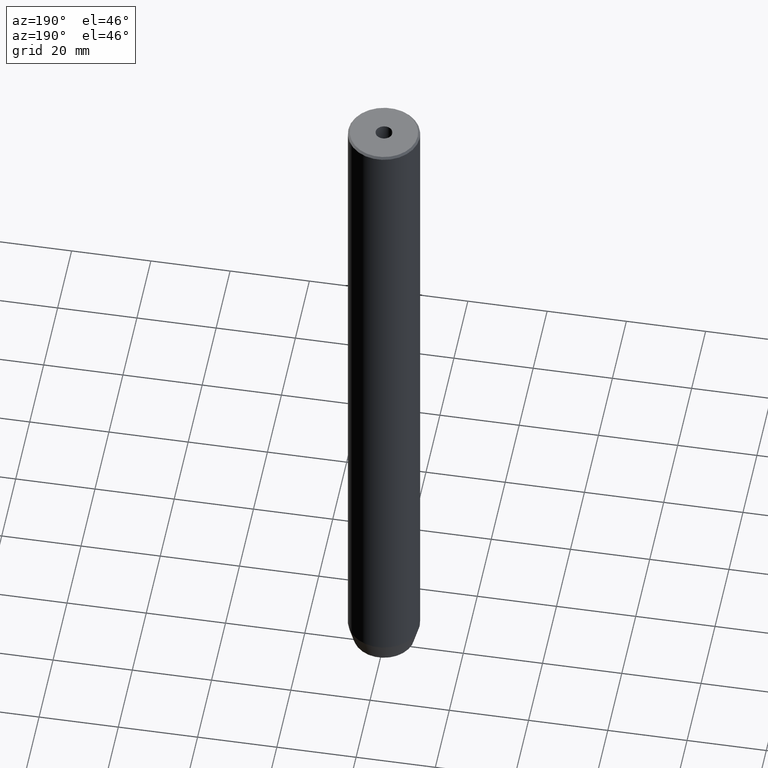
[diagram: clean part render]
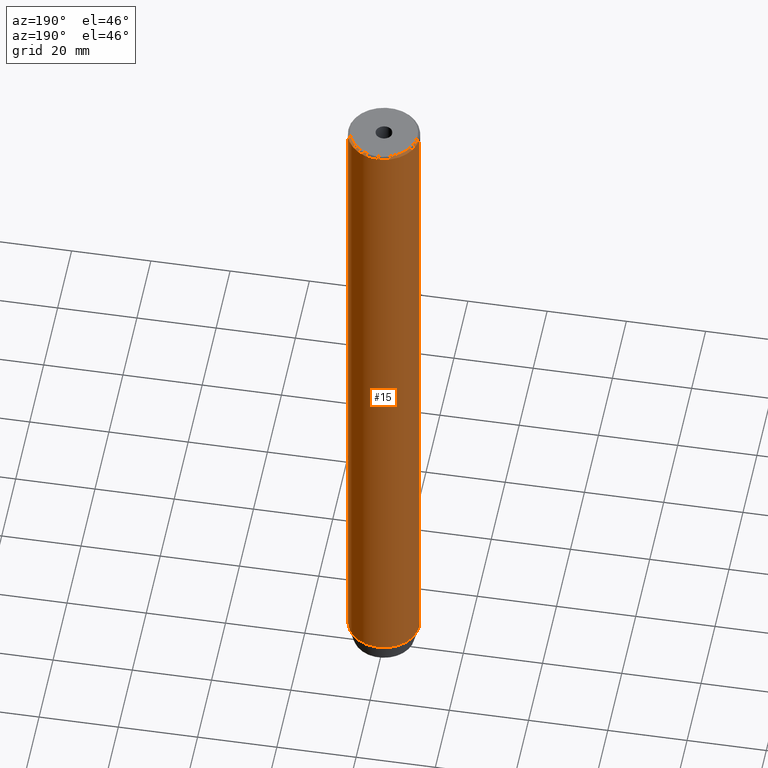
[diagram: same view with one face highlighted and labeled with its STEP entity id]
A machine part, auxiliary view. The second image highlights one B-rep face of the part: STEP entity #15.
In plain terms, the highlighted cylindrical surface (edge-blend (fillet) strip) has radius 9 mm, axis along (-0, -0, 1).
Its self-contained STEP definition (entity closure, byte-faithful):
#7 = VECTOR ( 'NONE', #493, 1000.000000000000000 ) ;
#15 = ADVANCED_FACE ( 'NONE', ( #485 ), #173, .T. ) ;
#39 = CARTESIAN_POINT ( 'NONE',  ( 0.000000000000000000, 0.000000000000000000, 0.000000000000000000 ) ) ;
#61 = CARTESIAN_POINT ( 'NONE',  ( 9.000000000000000000, 0.000000000000000000, 0.000000000000000000 ) ) ;
#102 = ORIENTED_EDGE ( 'NONE', *, *, #556, .T. ) ;
#109 = ORIENTED_EDGE ( 'NONE', *, *, #198, .T. ) ;
#122 = CARTESIAN_POINT ( 'NONE',  ( 0.000000000000000000, 0.000000000000000000, -0.5000000000000229816 ) ) ;
#128 = DIRECTION ( 'NONE',  ( -0.000000000000000000, -0.000000000000000000, 1.000000000000000000 ) ) ;
#135 = CARTESIAN_POINT ( 'NONE',  ( 9.000000000000000000, 0.000000000000000000, -175.0000000000000000 ) ) ;
#138 = ORIENTED_EDGE ( 'NONE', *, *, #426, .T. ) ;
#160 = CARTESIAN_POINT ( 'NONE',  ( 9.000000000000000000, 0.000000000000000000, -0.5000000000000229816 ) ) ;
#172 = CIRCLE ( 'NONE', #279, 9.000000000000000000 ) ;
#173 = CYLINDRICAL_SURFACE ( 'NONE', #267, 9.000000000000000000 ) ;
#198 = EDGE_CURVE ( 'NONE', #474, #282, #346, .T. ) ;
#239 = CARTESIAN_POINT ( 'NONE',  ( 0.000000000000000000, 0.000000000000000000, -175.0000000000000000 ) ) ;
#267 = AXIS2_PLACEMENT_3D ( 'NONE', #39, #128, #322 ) ;
#279 = AXIS2_PLACEMENT_3D ( 'NONE', #239, #542, #281 ) ;
#281 = DIRECTION ( 'NONE',  ( 1.000000000000000000, 0.000000000000000000, 0.000000000000000000 ) ) ;
#282 = VERTEX_POINT ( 'NONE', #160 ) ;
#284 = DIRECTION ( 'NONE',  ( 0.000000000000000000, 0.000000000000000000, -1.000000000000000000 ) ) ;
#285 = EDGE_LOOP ( 'NONE', ( #102, #138, #109, #465 ) ) ;
#322 = DIRECTION ( 'NONE',  ( 1.000000000000000000, 0.000000000000000000, 0.000000000000000000 ) ) ;
#324 = CARTESIAN_POINT ( 'NONE',  ( -9.000000000000000000, 1.102182119232617714E-15, -0.5000000000000229816 ) ) ;
#346 = CIRCLE ( 'NONE', #511, 9.000000000000000000 ) ;
#365 = DIRECTION ( 'NONE',  ( 1.000000000000000000, 0.000000000000000000, 0.000000000000000000 ) ) ;
#426 = EDGE_CURVE ( 'NONE', #432, #474, #540, .T. ) ;
#427 = LINE ( 'NONE', #61, #564 ) ;
#432 = VERTEX_POINT ( 'NONE', #447 ) ;
#447 = CARTESIAN_POINT ( 'NONE',  ( -9.000000000000000000, 1.102182119232617714E-15, -175.0000000000000000 ) ) ;
#459 = DIRECTION ( 'NONE',  ( -0.000000000000000000, -0.000000000000000000, 1.000000000000000000 ) ) ;
#460 = VERTEX_POINT ( 'NONE', #135 ) ;
#465 = ORIENTED_EDGE ( 'NONE', *, *, #503, .F. ) ;
#474 = VERTEX_POINT ( 'NONE', #324 ) ;
#485 = FACE_OUTER_BOUND ( 'NONE', #285, .T. ) ;
#493 = DIRECTION ( 'NONE',  ( -0.000000000000000000, -0.000000000000000000, 1.000000000000000000 ) ) ;
#503 = EDGE_CURVE ( 'NONE', #460, #282, #427, .T. ) ;
#511 = AXIS2_PLACEMENT_3D ( 'NONE', #122, #284, #365 ) ;
#540 = LINE ( 'NONE', #580, #7 ) ;
#542 = DIRECTION ( 'NONE',  ( -0.000000000000000000, -0.000000000000000000, 1.000000000000000000 ) ) ;
#556 = EDGE_CURVE ( 'NONE', #460, #432, #172, .T. ) ;
#564 = VECTOR ( 'NONE', #459, 1000.000000000000000 ) ;
#580 = CARTESIAN_POINT ( 'NONE',  ( -9.000000000000000000, 1.102182119232617714E-15, 0.000000000000000000 ) ) ;